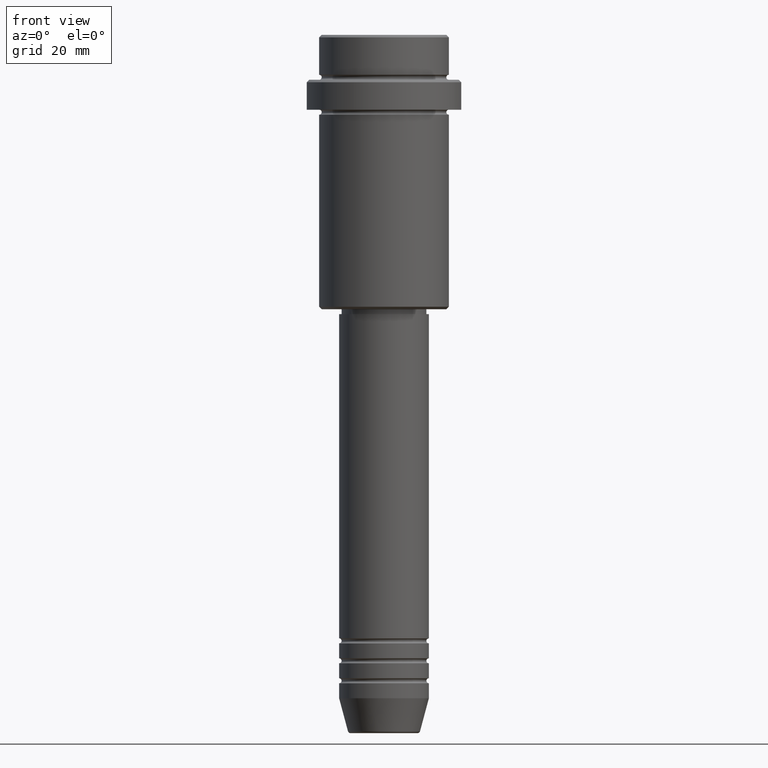
[diagram: clean part render]
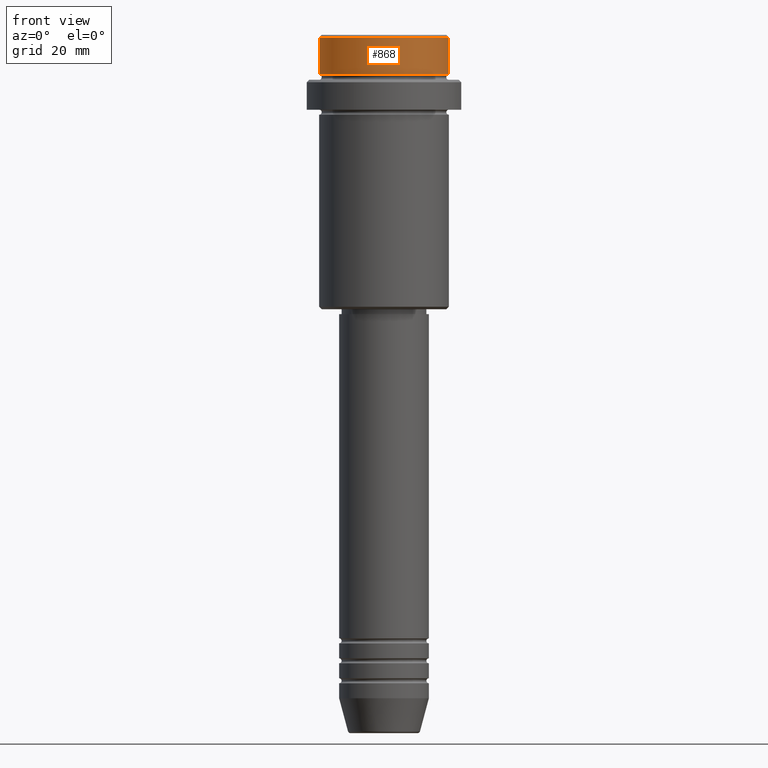
[diagram: same view with one face highlighted and labeled with its STEP entity id]
A machine part, front view. The second image highlights one B-rep face of the part: STEP entity #868.
In plain terms, the highlighted cylindrical surface (partial cylindrical patch) has radius 13 mm, axis along (-0, -0, 1).
Its self-contained STEP definition (entity closure, byte-faithful):
#26 = CARTESIAN_POINT ( 'NONE',  ( 12.99999999999999822, 0.000000000000000000, -0.4999999999999900080 ) ) ;
#27 = CIRCLE ( 'NONE', #828, 12.99999999999999822 ) ;
#57 = AXIS2_PLACEMENT_3D ( 'NONE', #1097, #966, #303 ) ;
#81 = ORIENTED_EDGE ( 'NONE', *, *, #750, .T. ) ;
#117 = ORIENTED_EDGE ( 'NONE', *, *, #395, .T. ) ;
#154 = DIRECTION ( 'NONE',  ( 1.000000000000000000, 0.000000000000000000, 0.000000000000000000 ) ) ;
#192 = VERTEX_POINT ( 'NONE', #1128 ) ;
#222 = VERTEX_POINT ( 'NONE', #26 ) ;
#274 = DIRECTION ( 'NONE',  ( -0.000000000000000000, -0.000000000000000000, 1.000000000000000000 ) ) ;
#303 = DIRECTION ( 'NONE',  ( 1.000000000000000000, 0.000000000000000000, 0.000000000000000000 ) ) ;
#310 = LINE ( 'NONE', #872, #969 ) ;
#363 = ORIENTED_EDGE ( 'NONE', *, *, #720, .T. ) ;
#377 = CARTESIAN_POINT ( 'NONE',  ( 0.000000000000000000, 0.000000000000000000, -7.999999999999998224 ) ) ;
#384 = DIRECTION ( 'NONE',  ( 1.000000000000000000, 0.000000000000000000, 0.000000000000000000 ) ) ;
#385 = CARTESIAN_POINT ( 'NONE',  ( -12.99999999999999822, 1.592040838891558898E-15, -0.4999999999999900080 ) ) ;
#395 = EDGE_CURVE ( 'NONE', #850, #222, #1361, .T. ) ;
#399 = CARTESIAN_POINT ( 'NONE',  ( 12.99999999999999822, 0.000000000000000000, 0.000000000000000000 ) ) ;
#519 = CYLINDRICAL_SURFACE ( 'NONE', #57, 12.99999999999999822 ) ;
#591 = CARTESIAN_POINT ( 'NONE',  ( 0.000000000000000000, 0.000000000000000000, -0.4999999999999900080 ) ) ;
#634 = VECTOR ( 'NONE', #274, 1000.000000000000000 ) ;
#720 = EDGE_CURVE ( 'NONE', #222, #1155, #27, .T. ) ;
#750 = EDGE_CURVE ( 'NONE', #192, #850, #806, .T. ) ;
#806 = CIRCLE ( 'NONE', #1122, 12.99999999999999822 ) ;
#818 = DIRECTION ( 'NONE',  ( -0.000000000000000000, -0.000000000000000000, 1.000000000000000000 ) ) ;
#828 = AXIS2_PLACEMENT_3D ( 'NONE', #591, #1146, #154 ) ;
#842 = EDGE_CURVE ( 'NONE', #192, #1155, #310, .T. ) ;
#850 = VERTEX_POINT ( 'NONE', #1282 ) ;
#868 = ADVANCED_FACE ( 'NONE', ( #959 ), #519, .T. ) ;
#872 = CARTESIAN_POINT ( 'NONE',  ( -12.99999999999999822, 1.592040838891558898E-15, 0.000000000000000000 ) ) ;
#928 = ORIENTED_EDGE ( 'NONE', *, *, #842, .F. ) ;
#949 = EDGE_LOOP ( 'NONE', ( #928, #81, #117, #363 ) ) ;
#959 = FACE_OUTER_BOUND ( 'NONE', #949, .T. ) ;
#966 = DIRECTION ( 'NONE',  ( -0.000000000000000000, -0.000000000000000000, 1.000000000000000000 ) ) ;
#969 = VECTOR ( 'NONE', #978, 1000.000000000000000 ) ;
#978 = DIRECTION ( 'NONE',  ( -0.000000000000000000, -0.000000000000000000, 1.000000000000000000 ) ) ;
#1097 = CARTESIAN_POINT ( 'NONE',  ( 0.000000000000000000, 0.000000000000000000, 0.000000000000000000 ) ) ;
#1122 = AXIS2_PLACEMENT_3D ( 'NONE', #377, #818, #384 ) ;
#1128 = CARTESIAN_POINT ( 'NONE',  ( -12.99999999999999822, 1.592040838891558898E-15, -7.999999999999998224 ) ) ;
#1146 = DIRECTION ( 'NONE',  ( 0.000000000000000000, 0.000000000000000000, -1.000000000000000000 ) ) ;
#1155 = VERTEX_POINT ( 'NONE', #385 ) ;
#1282 = CARTESIAN_POINT ( 'NONE',  ( 12.99999999999999822, 0.000000000000000000, -7.999999999999998224 ) ) ;
#1361 = LINE ( 'NONE', #399, #634 ) ;